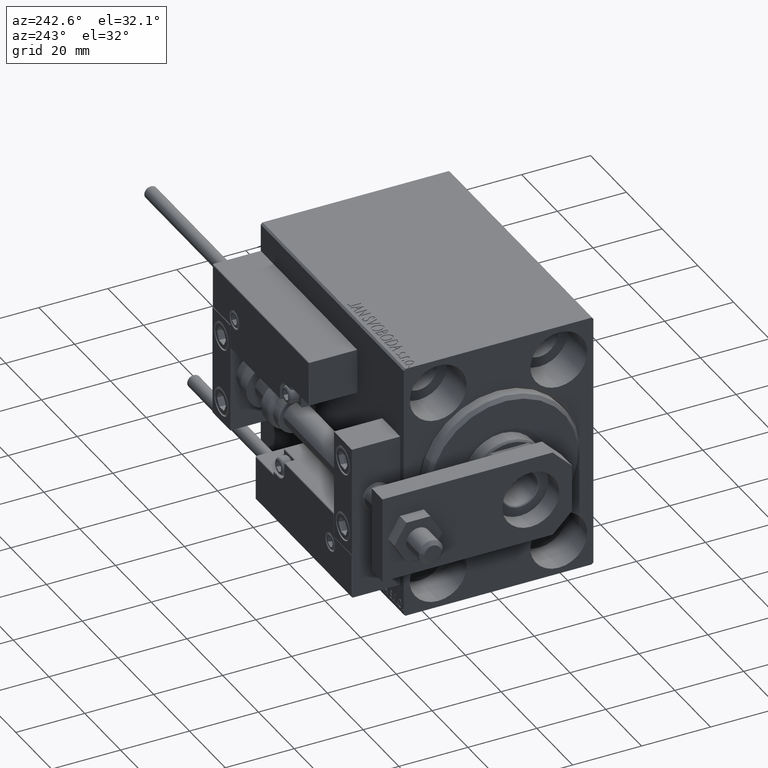
[diagram: clean part render]
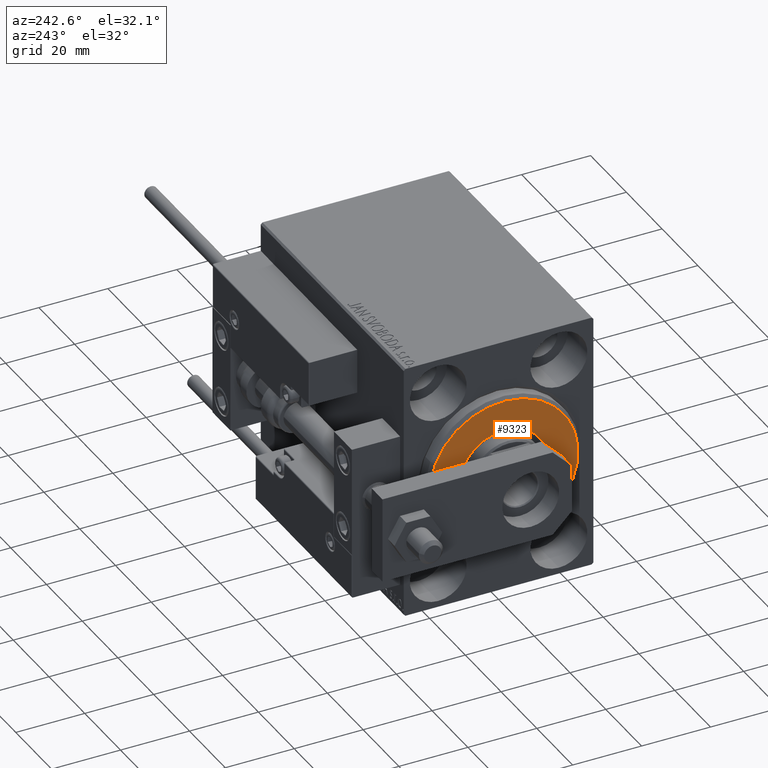
[diagram: same view with one face highlighted and labeled with its STEP entity id]
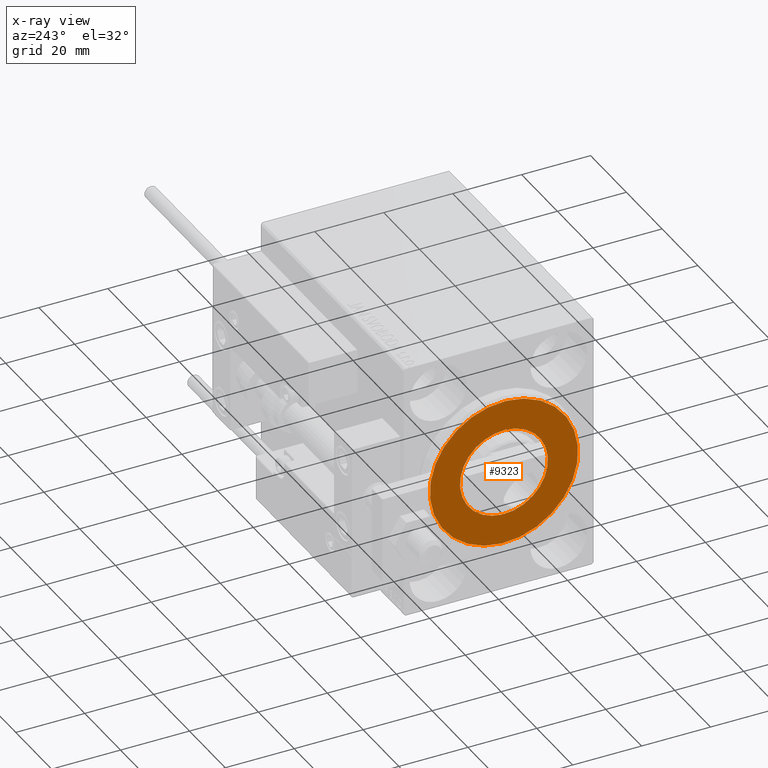
[diagram: x-ray of the same camera — body ghosted, the highlighted face saturated]
A machine part, auxiliary view. The second image highlights one B-rep face of the part: STEP entity #9323.
The next image is the same camera in x-ray: the body ghosted, the highlighted face saturated — about 0% of this face is hidden behind the body in this view.
In plain terms, the highlighted planar face has unit normal (-1, 0, 0).
Its self-contained STEP definition (entity closure, byte-faithful):
#1237 = CIRCLE ( 'NONE', #41920, 12.75000000000000000 ) ;
#1928 = CARTESIAN_POINT ( 'NONE',  ( 3.000000000000000000, 0.000000000000000000, 0.000000000000000000 ) ) ;
#2865 = CIRCLE ( 'NONE', #41060, 12.75000000000000000 ) ;
#5227 = VERTEX_POINT ( 'NONE', #27852 ) ;
#6077 = DIRECTION ( 'NONE',  ( 0.000000000000000000, 0.000000000000000000, -1.000000000000000000 ) ) ;
#8195 = CARTESIAN_POINT ( 'NONE',  ( 3.000000000000000000, 0.000000000000000000, 0.000000000000000000 ) ) ;
#8606 = EDGE_LOOP ( 'NONE', ( #39748, #46880 ) ) ;
#9191 = VERTEX_POINT ( 'NONE', #15105 ) ;
#9323 = ADVANCED_FACE ( 'NONE', ( #31397, #46910 ), #12037, .T. ) ;
#9468 = DIRECTION ( 'NONE',  ( 0.000000000000000000, 0.000000000000000000, -1.000000000000000000 ) ) ;
#12037 = PLANE ( 'NONE',  #25601 ) ;
#12118 = AXIS2_PLACEMENT_3D ( 'NONE', #1928, #13630, #13364 ) ;
#13364 = DIRECTION ( 'NONE',  ( 0.000000000000000000, 0.000000000000000000, -1.000000000000000000 ) ) ;
#13630 = DIRECTION ( 'NONE',  ( 1.000000000000000000, -0.000000000000000000, 0.000000000000000000 ) ) ;
#15105 = CARTESIAN_POINT ( 'NONE',  ( 3.000000000000000000, 0.000000000000000000, 12.75000000000000000 ) ) ;
#16199 = CIRCLE ( 'NONE', #12118, 21.50000000000000355 ) ;
#19467 = CARTESIAN_POINT ( 'NONE',  ( 3.000000000000000000, 0.000000000000000000, 0.000000000000000000 ) ) ;
#22843 = VERTEX_POINT ( 'NONE', #32473 ) ;
#23762 = DIRECTION ( 'NONE',  ( 1.000000000000000000, -0.000000000000000000, 0.000000000000000000 ) ) ;
#25601 = AXIS2_PLACEMENT_3D ( 'NONE', #8195, #23762, #47156 ) ;
#26912 = CARTESIAN_POINT ( 'NONE',  ( 3.000000000000000000, 0.000000000000000000, 0.000000000000000000 ) ) ;
#27852 = CARTESIAN_POINT ( 'NONE',  ( 3.000000000000000000, 1.561424668912874914E-15, -12.75000000000000000 ) ) ;
#30588 = AXIS2_PLACEMENT_3D ( 'NONE', #26912, #30985, #6077 ) ;
#30985 = DIRECTION ( 'NONE',  ( 1.000000000000000000, -0.000000000000000000, 0.000000000000000000 ) ) ;
#31362 = EDGE_CURVE ( 'NONE', #9191, #5227, #1237, .T. ) ;
#31397 = FACE_OUTER_BOUND ( 'NONE', #48538, .T. ) ;
#31804 = EDGE_CURVE ( 'NONE', #44063, #22843, #32173, .T. ) ;
#32173 = CIRCLE ( 'NONE', #30588, 21.50000000000000355 ) ;
#32473 = CARTESIAN_POINT ( 'NONE',  ( 3.000000000000000000, 0.000000000000000000, 21.50000000000000355 ) ) ;
#34343 = DIRECTION ( 'NONE',  ( 0.000000000000000000, 0.000000000000000000, -1.000000000000000000 ) ) ;
#36590 = ORIENTED_EDGE ( 'NONE', *, *, #31804, .T. ) ;
#38659 = ORIENTED_EDGE ( 'NONE', *, *, #43028, .T. ) ;
#39748 = ORIENTED_EDGE ( 'NONE', *, *, #31362, .T. ) ;
#41060 = AXIS2_PLACEMENT_3D ( 'NONE', #46811, #46058, #34343 ) ;
#41920 = AXIS2_PLACEMENT_3D ( 'NONE', #19467, #47664, #9468 ) ;
#43028 = EDGE_CURVE ( 'NONE', #22843, #44063, #16199, .T. ) ;
#44063 = VERTEX_POINT ( 'NONE', #44409 ) ;
#44409 = CARTESIAN_POINT ( 'NONE',  ( 3.000000000000000000, 2.694222958124177598E-15, -21.50000000000000355 ) ) ;
#46058 = DIRECTION ( 'NONE',  ( -1.000000000000000000, 0.000000000000000000, -0.000000000000000000 ) ) ;
#46555 = EDGE_CURVE ( 'NONE', #5227, #9191, #2865, .T. ) ;
#46811 = CARTESIAN_POINT ( 'NONE',  ( 3.000000000000000000, 0.000000000000000000, 0.000000000000000000 ) ) ;
#46880 = ORIENTED_EDGE ( 'NONE', *, *, #46555, .T. ) ;
#46910 = FACE_BOUND ( 'NONE', #8606, .T. ) ;
#47156 = DIRECTION ( 'NONE',  ( 0.000000000000000000, 0.000000000000000000, -1.000000000000000000 ) ) ;
#47664 = DIRECTION ( 'NONE',  ( -1.000000000000000000, 0.000000000000000000, -0.000000000000000000 ) ) ;
#48538 = EDGE_LOOP ( 'NONE', ( #38659, #36590 ) ) ;